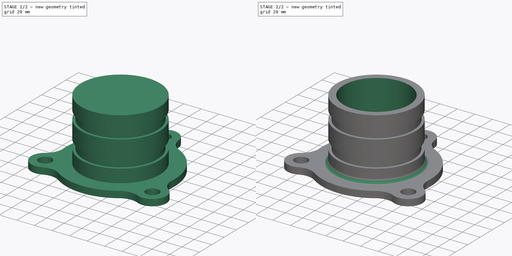
[diagram: build sequence overview — one tinted view per stage of 2, left to right]
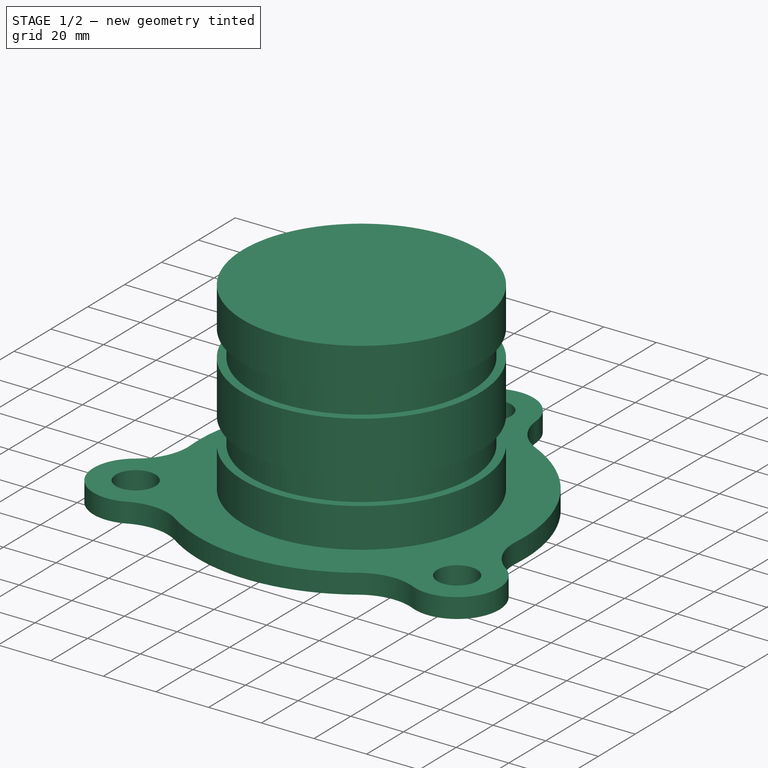
[diagram: stage 1 of 2 — iso view after this stage's code; geometry added in this stage tinted green]
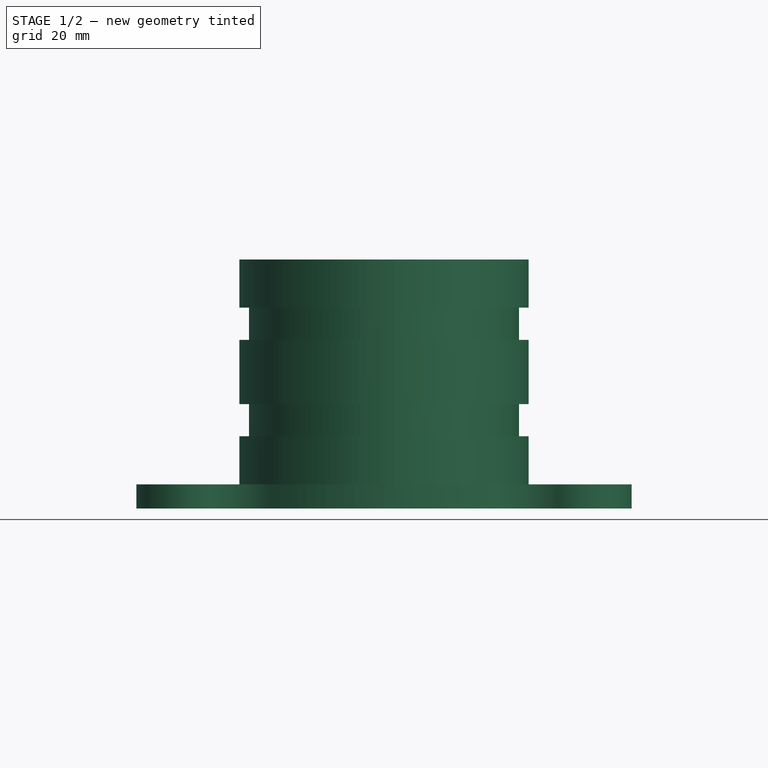
[diagram: stage 1 of 2 — front view after this stage's code; geometry added in this stage tinted green]
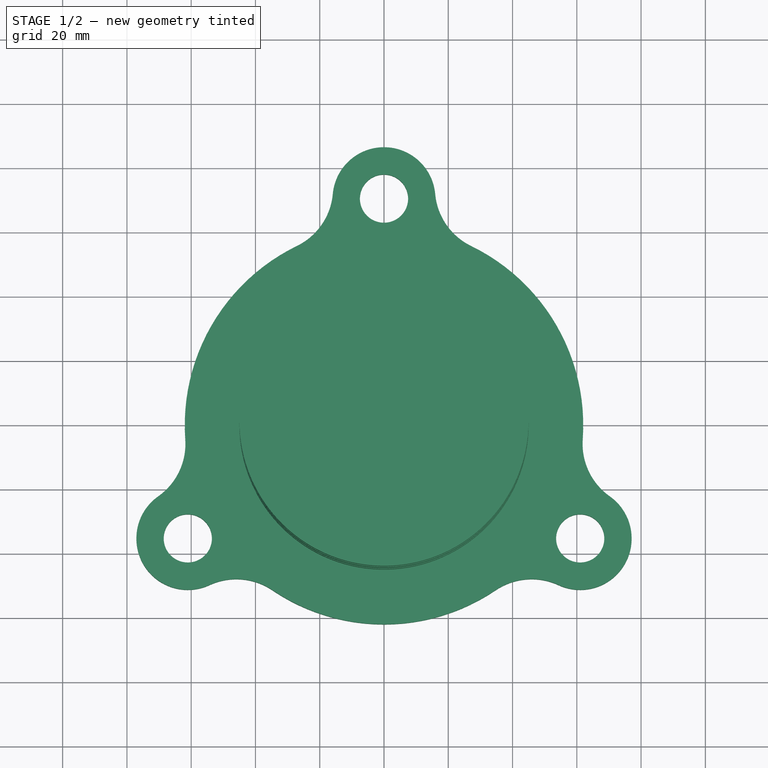
[diagram: stage 1 of 2 — top view after this stage's code; geometry added in this stage tinted green]
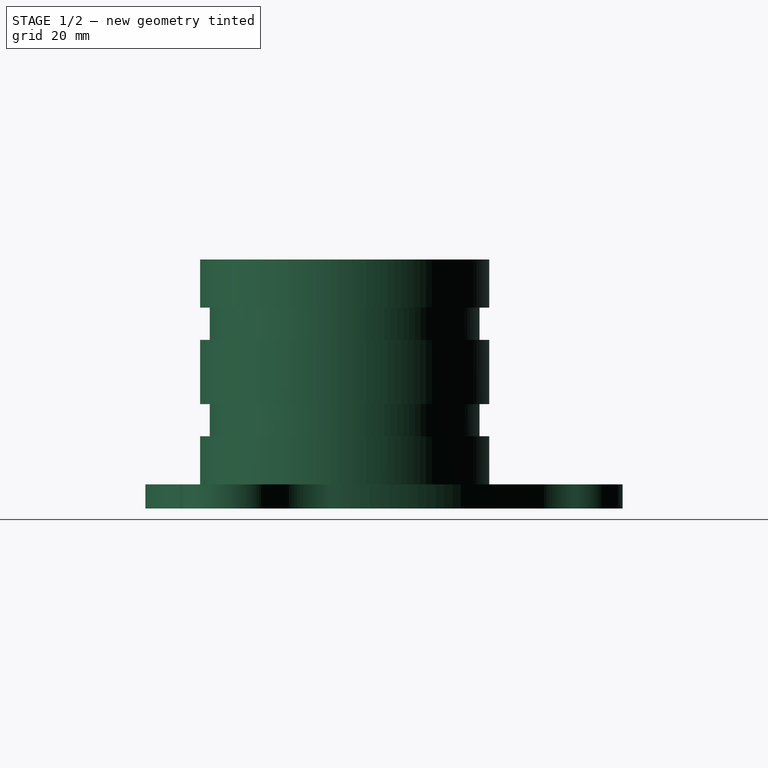
[diagram: stage 1 of 2 — right view after this stage's code; geometry added in this stage tinted green]
FCSTD DOCUMENT  (FreeCAD 0.18R14573 (Git))
Label: page97
License: All rights reserved
LicenseURL: http://en.wikipedia.org/wiki/All_rights_reserved
objects: Sketcher::SketchObject×3, PartDesign::Pad×1, PartDesign::Revolution×1, PartDesign::Fillet×1, PartDesign::Pocket×1, PartDesign::Body×1
note: 11 computed .brp shape members not serialized (recipe doc carries the construction recipe); baked Part::Feature solids carry a one-line shape summary decoded from their .brp

FEATURE [Sketcher::SketchObject] Sketch
  MapMode = 5
  Support = -> [XY_Plane]
  sketch-geometry (17):
    g0: ArcOfCircle CenterX=0 CenterY=0 CenterZ=0 NormalX=0 NormalY=0 NormalZ=1 AngleXU=0 Radius=62 StartAngle=2.02332 EndAngle=3.21267
    g1: ArcOfCircle CenterX=0 CenterY=0 CenterZ=0 NormalX=0 NormalY=0 NormalZ=1 AngleXU=0 Radius=62 StartAngle=6.21211 EndAngle=7.40146
    g2: ArcOfCircle CenterX=0 CenterY=0 CenterZ=0 NormalX=0 NormalY=0 NormalZ=1 AngleXU=0 Radius=62 StartAngle=4.11771 EndAngle=5.30706
    g3: ArcOfCircle CenterX=0 CenterY=70.5 CenterZ=0 NormalX=0 NormalY=0 NormalZ=1 AngleXU=0 Radius=16 StartAngle=0.090302 EndAngle=3.05129
    g4: ArcOfCircle CenterX=-61.0548 CenterY=-35.25 CenterZ=0 NormalX=0 NormalY=0 NormalZ=1 AngleXU=0 Radius=16 StartAngle=2.1847 EndAngle=5.14569
    g5: ArcOfCircle CenterX=61.0548 CenterY=-35.25 CenterZ=0 NormalX=0 NormalY=0 NormalZ=1 AngleXU=0 Radius=16 StartAngle=4.27909 EndAngle=7.24008
    g6: Circle [constr] CenterX=0 CenterY=0 CenterZ=0 NormalX=0 NormalY=0 NormalZ=1 AngleXU=0 Radius=70.5
    g7: LineSegment [constr] StartX=-61.0548 StartY=-35.25 StartZ=0 EndX=0 EndY=0 EndZ=0
    g8: Circle CenterX=0 CenterY=70.5 CenterZ=0 NormalX=0 NormalY=0 NormalZ=1 AngleXU=0 Radius=7.5
    g9: Circle CenterX=-61.0548 CenterY=-35.25 CenterZ=0 NormalX=0 NormalY=0 NormalZ=1 AngleXU=0 Radius=7.5
    g10: Circle CenterX=61.0548 CenterY=-35.25 CenterZ=0 NormalX=0 NormalY=0 NormalZ=1 AngleXU=0 Radius=7.5
    g11: ArcOfCircle CenterX=-35.8533 CenterY=73.7465 CenterZ=0 NormalX=0 NormalY=0 NormalZ=1 AngleXU=0 Radius=20 StartAngle=5.16491 EndAngle=6.19288
    g12: ArcOfCircle CenterX=35.8533 CenterY=73.7465 CenterZ=0 NormalX=0 NormalY=0 NormalZ=1 AngleXU=0 Radius=20 StartAngle=3.23189 EndAngle=4.25987
    g13: ArcOfCircle CenterX=-81.793 CenterY=-5.82334 CenterZ=0 NormalX=0 NormalY=0 NormalZ=1 AngleXU=0 Radius=20 StartAngle=5.32629 EndAngle=6.35426
    g14: ArcOfCircle CenterX=-45.9396 CenterY=-67.9231 CenterZ=0 NormalX=0 NormalY=0 NormalZ=1 AngleXU=0 Radius=20 StartAngle=0.976121 EndAngle=2.00409
    g15: ArcOfCircle CenterX=81.793 CenterY=-5.82334 CenterZ=0 NormalX=0 NormalY=0 NormalZ=1 AngleXU=0 Radius=20 StartAngle=3.07052 EndAngle=4.09849
    g16: ArcOfCircle CenterX=45.9396 CenterY=-67.9231 CenterZ=0 NormalX=0 NormalY=0 NormalZ=1 AngleXU=0 Radius=20 StartAngle=1.1375 EndAngle=2.16547
  constraints (43):
    c: Coincident(g1,g0)
    c: Coincident(g2,g0)
    c: PointOnObject(g3,g-2)
    c: Coincident(g6,g0)
    c: Radius(g6) = 70.5
    c: PointOnObject(g3,g6)
    c: PointOnObject(g4,g6)
    c: PointOnObject(g5,g6)
    c: Coincident(g7,g4)
    c: Coincident(g7,g0)
    c: Angle(g-1,g7) = 0.523599
    c: Horizontal(g4,g5)
    c: Coincident(g8,g3)
    c: Coincident(g9,g4)
    c: Coincident(g10,g5)
    c: Radius(g9) = 7.5
    c: Equal(g9,g10)
    c: Equal(g9,g8)
    c: Radius(g3) = 16
    c: Equal(g3,g4)
    c: Equal(g3,g5)
    c: Equal(g0,g1)
    c: Equal(g1,g2)
    c: Coincident(g0,g-1)
    c: Tangent(g1,g12) = 1.5708
    c: Tangent(g3,g12) = 1.5708
    c: Tangent(g3,g11) = 1.5708
    c: Tangent(g0,g11) = 1.5708
    c: Tangent(g2,g14) = 1.5708
    c: Tangent(g4,g14) = 1.5708
    c: Tangent(g4,g13) = 1.5708
    c: Tangent(g0,g13) = 1.5708
    c: Tangent(g5,g16) = 1.5708
    c: Tangent(g2,g16) = 1.5708
    c: Tangent(g1,g15) = 1.5708
    c: Tangent(g5,g15) = 1.5708
    c: Equal(g15,g16)
    c: Equal(g16,g12)
    c: Equal(g12,g11)
    c: Equal(g11,g13)
    c: Equal(g13,g14)
    c: Radius(g11) = 20
    c: Radius(g0) = 62
FEATURE [PartDesign::Pad] Pad
  Length = 7.5
  Length2 = 100
  Profile = -> Sketch
  Type = 0
FEATURE [Sketcher::SketchObject] Sketch001
  MapMode = 5
  Placement = pos=(0,0,0) rot=(1,0,0;1.5708rad)
  Support = -> [XZ_Plane]
  sketch-geometry (12):
    g0: LineSegment StartX=0 StartY=7.5 StartZ=0 EndX=45 EndY=7.5 EndZ=0
    g1: LineSegment StartX=45 StartY=7.5 StartZ=0 EndX=45 EndY=22.5 EndZ=0
    g2: LineSegment StartX=45 StartY=22.5 StartZ=0 EndX=42 EndY=22.5 EndZ=0
    g3: LineSegment StartX=42 StartY=22.5 StartZ=0 EndX=42 EndY=32.5 EndZ=0
    g4: LineSegment StartX=42 StartY=32.5 StartZ=0 EndX=45 EndY=32.5 EndZ=0
    g5: LineSegment StartX=45 StartY=32.5 StartZ=0 EndX=45 EndY=52.5 EndZ=0
    g6: LineSegment StartX=45 StartY=52.5 StartZ=0 EndX=42 EndY=52.5 EndZ=0
    g7: LineSegment StartX=42 StartY=52.5 StartZ=0 EndX=42 EndY=62.5 EndZ=0
    g8: LineSegment StartX=42 StartY=62.5 StartZ=0 EndX=45 EndY=62.5 EndZ=0
    g9: LineSegment StartX=45 StartY=62.5 StartZ=0 EndX=45 EndY=77.5 EndZ=0
    g10: LineSegment StartX=45 StartY=77.5 StartZ=0 EndX=0 EndY=77.5 EndZ=0
    g11: LineSegment StartX=0 StartY=77.5 StartZ=0 EndX=0 EndY=7.5 EndZ=0
  constraints (36):
    c: PointOnObject(g0,g-2)
    c: Horizontal(g0)
    c: Coincident(g0,g1)
    c: Vertical(g1)
    c: Coincident(g1,g2)
    c: Horizontal(g2)
    c: Coincident(g2,g3)
    c: Vertical(g3)
    c: Coincident(g3,g4)
    c: Horizontal(g4)
    c: Coincident(g4,g5)
    c: Vertical(g5)
    c: Coincident(g5,g6)
    c: Horizontal(g6)
    c: Coincident(g6,g7)
    c: Vertical(g7)
    c: Coincident(g7,g8)
    c: Horizontal(g8)
    c: Coincident(g8,g9)
    c: Vertical(g9)
    c: Coincident(g9,g10)
    c: Horizontal(g10)
    c: Coincident(g10,g11)
    c: Vertical(g11)
    c: Coincident(g0,g11)
    c: DistanceY(g0) = 7.5
    c: PointOnObject(g1,g5)
    c: PointOnObject(g1,g9)
    c: DistanceX(g10,g10) = 45
    c: DistanceY(g9) = 77.5
    c: DistanceY(g5,g5) = 20
    c: DistanceY(g7,g7) = 10
    c: Equal(g3,g7)
    c: Equal(g6,g2)
    c: DistanceY(g9,g9) = 15
    c: DistanceX(g8,g8) = 3
FEATURE [PartDesign::Revolution] Revolution
  Angle = 360
  Axis = (0,0,1)
  Base = (0,0,0)
  BaseFeature = -> Pad
  Profile = -> Sketch001
  ReferenceAxis = -> Sketch001 [V_Axis]
  Reversed = true
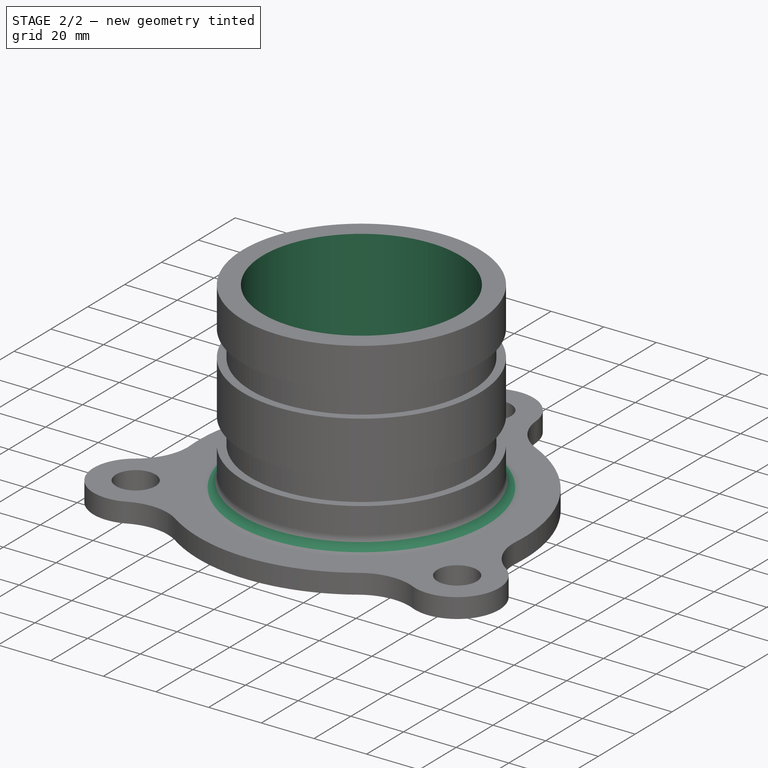
[diagram: stage 2 of 2 — iso view after this stage's code; geometry added in this stage tinted green]
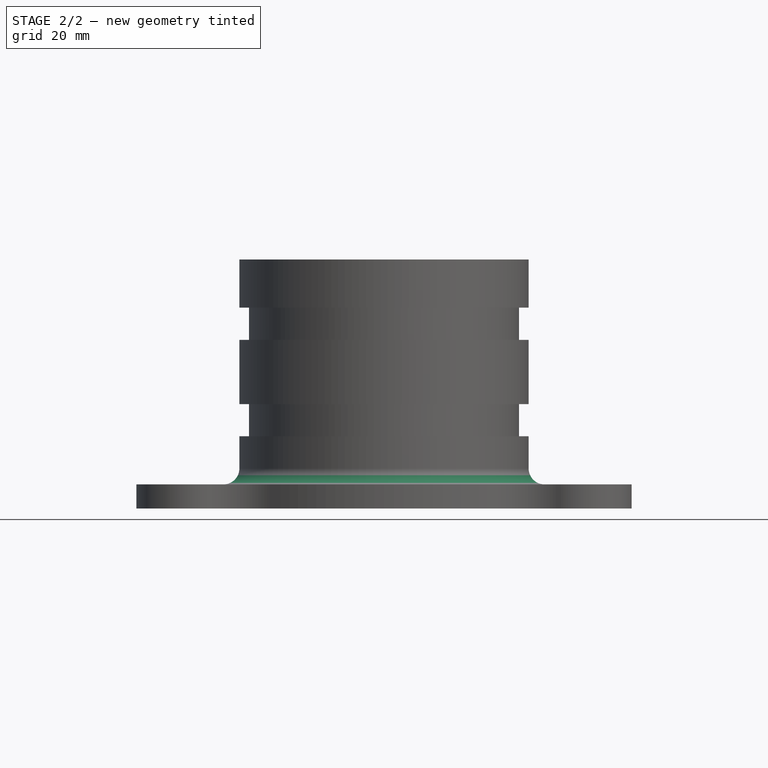
[diagram: stage 2 of 2 — front view after this stage's code; geometry added in this stage tinted green]
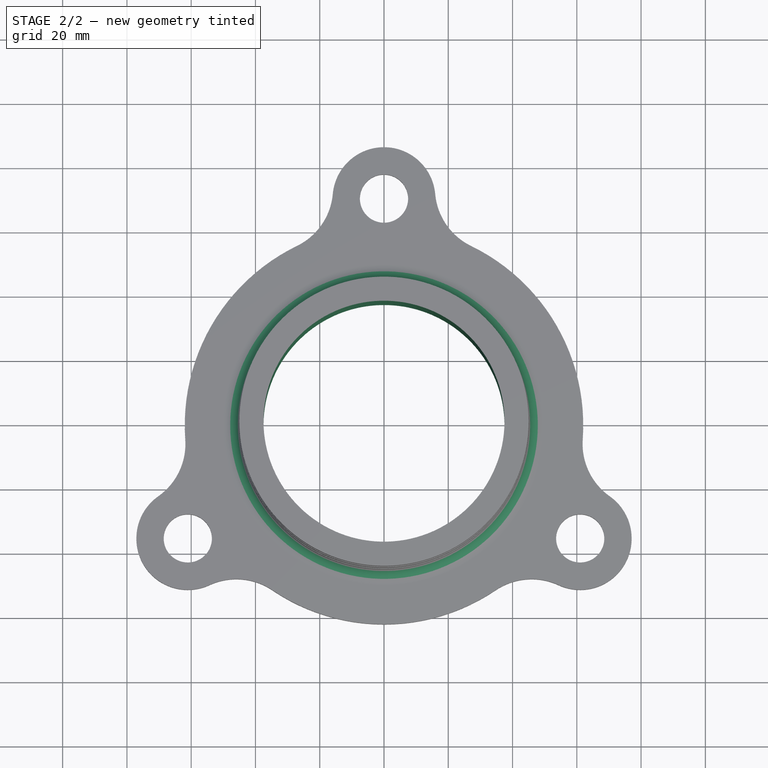
[diagram: stage 2 of 2 — top view after this stage's code; geometry added in this stage tinted green]
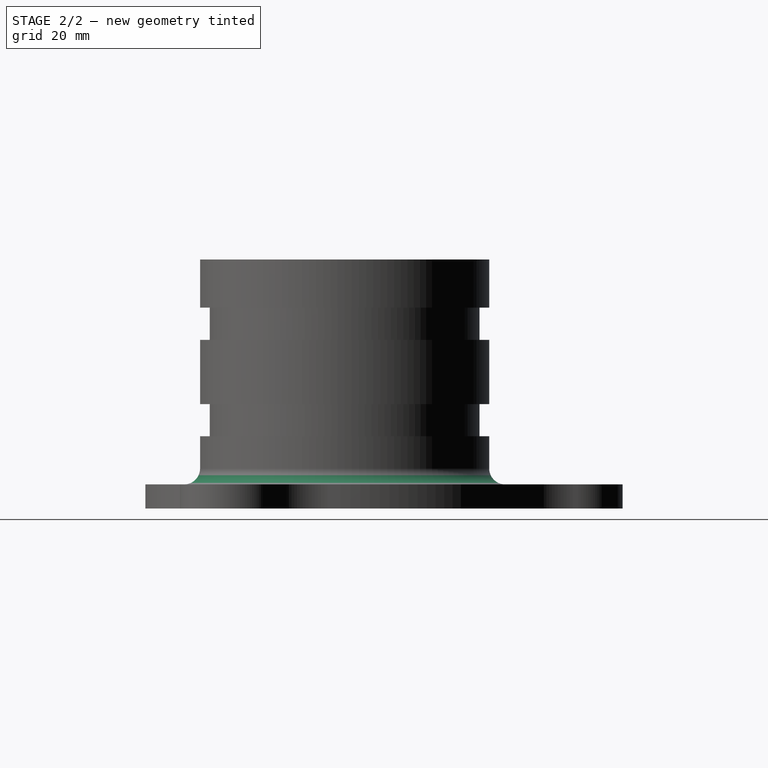
[diagram: stage 2 of 2 — right view after this stage's code; geometry added in this stage tinted green]
FEATURE [PartDesign::Fillet] Fillet
  Base = -> Revolution [Edge33]
  BaseFeature = -> Revolution
  Radius = 5
FEATURE [Sketcher::SketchObject] Sketch002
  MapMode = 5
  Placement = pos=(0,0,77.5) rot=(0,0,1;0rad)
  Support = -> [Fillet]
  sketch-geometry (1):
    g0: Circle CenterX=0 CenterY=0 CenterZ=0 NormalX=0 NormalY=0 NormalZ=1 AngleXU=0 Radius=37.5
  constraints (2):
    c: Coincident(g0,g-1)
    c: Radius(g0) = 37.5
FEATURE [PartDesign::Pocket] Pocket
  BaseFeature = -> Fillet
  Length = 5
  Length2 = 100
  Profile = -> Sketch002
  Type = 1
FEATURE [PartDesign::Body] Body
  Group = -> [Sketch,Pad,Sketch001,Revolution,Fillet,Sketch002,Pocket]
  Origin = -> Origin
  Tip = -> Pocket
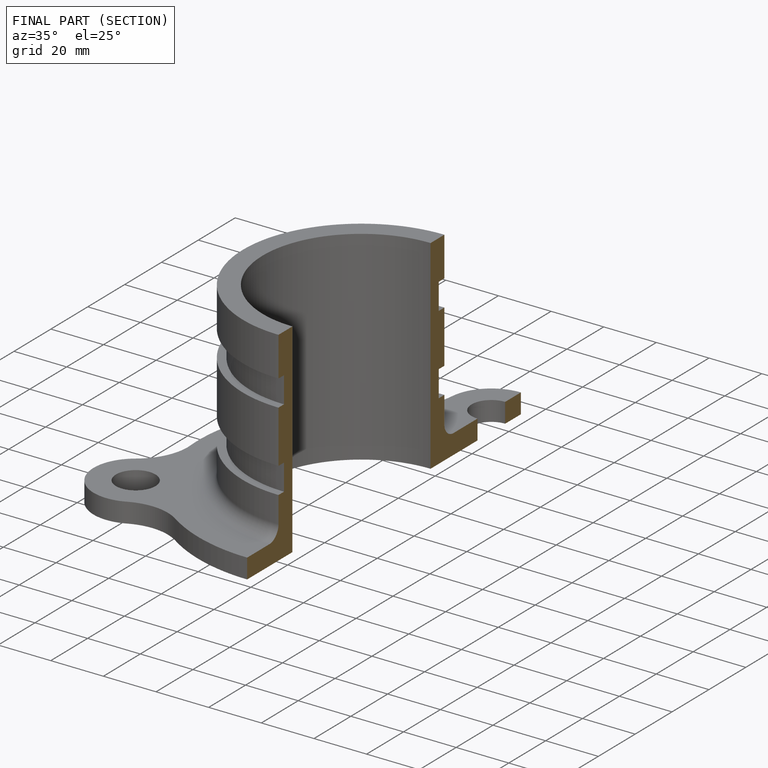
[diagram: finished part — half-section view (interior)]
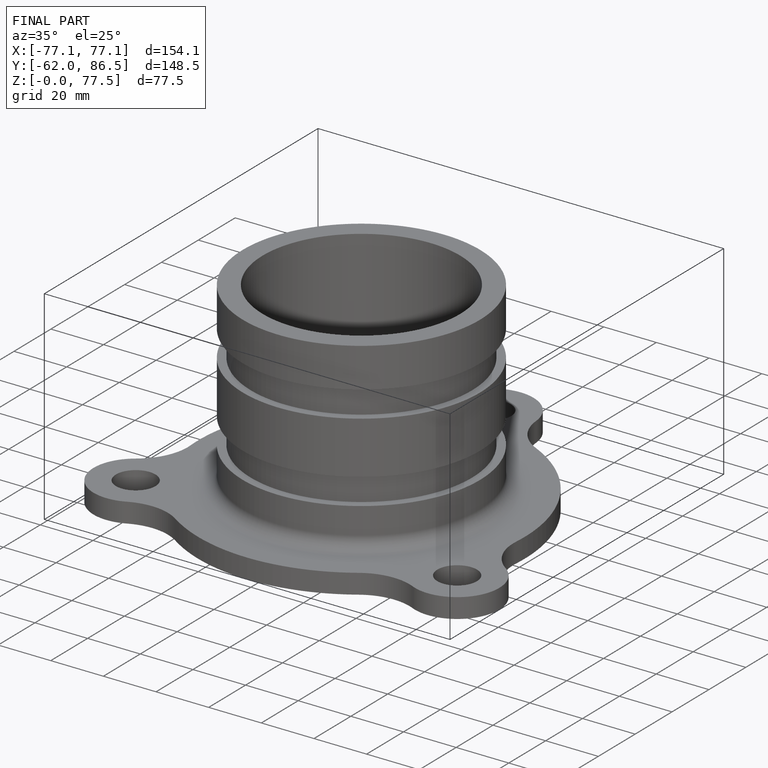
[diagram: finished part — iso view with bounding-box wireframe]
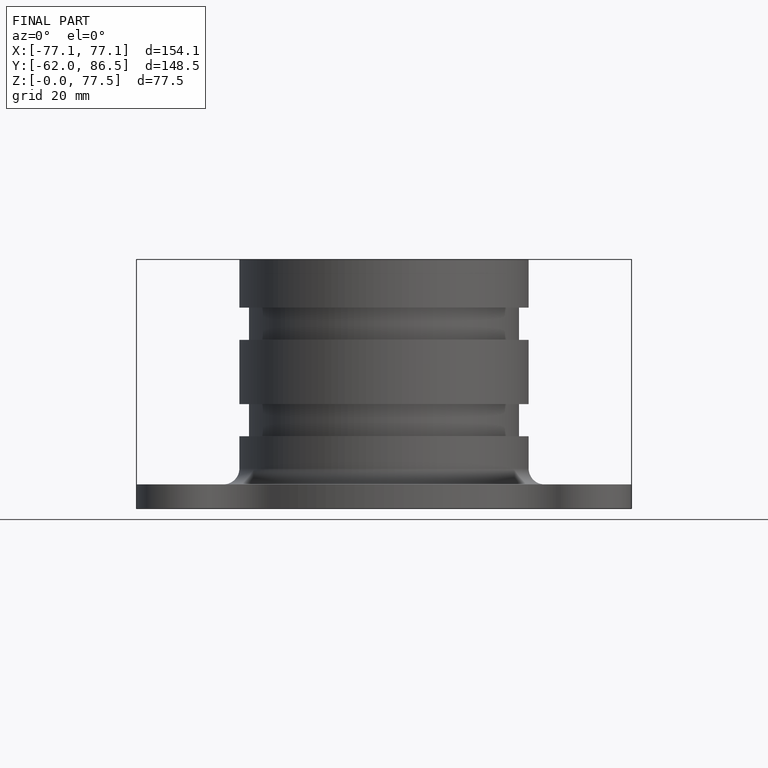
[diagram: finished part — front view with bounding-box wireframe]
